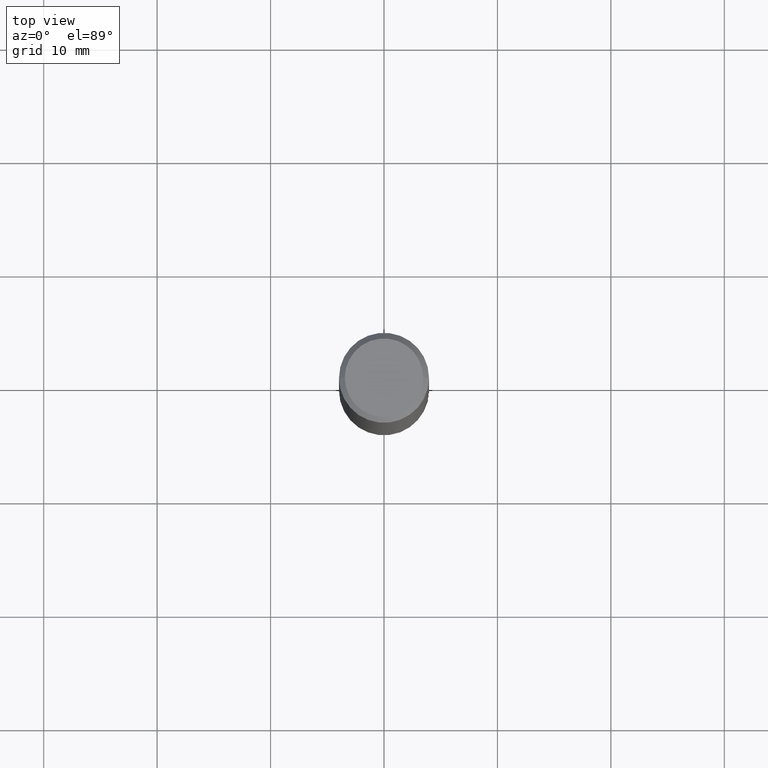
[diagram: clean part render]
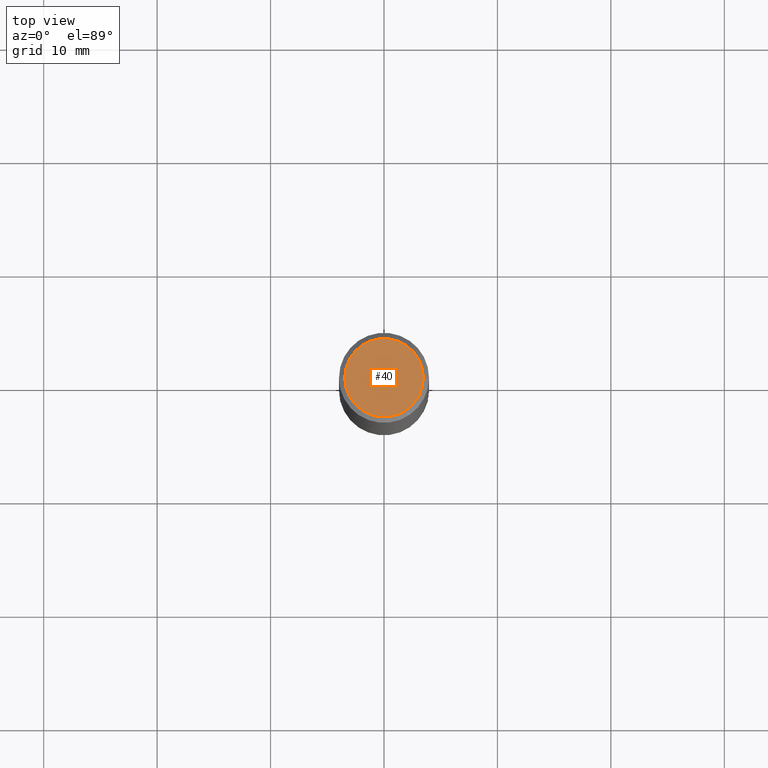
[diagram: same view with one face highlighted and labeled with its STEP entity id]
A machine part, top view. The second image highlights one B-rep face of the part: STEP entity #40.
In plain terms, the highlighted planar face has unit normal (0, -0, -1).
Its self-contained STEP definition (entity closure, byte-faithful):
#5 = FACE_OUTER_BOUND ( 'NONE', #273, .T. ) ;
#18 = AXIS2_PLACEMENT_3D ( 'NONE', #309, #100, #52 ) ;
#40 = ADVANCED_FACE ( 'NONE', ( #5 ), #239, .F. ) ;
#52 = DIRECTION ( 'NONE',  ( 1.000000000000000000, -6.982962677686266711E-15, 4.876176775795935232E-29 ) ) ;
#91 = CARTESIAN_POINT ( 'NONE',  ( 0.000000000000000000, 0.000000000000000000, 0.000000000000000000 ) ) ;
#100 = DIRECTION ( 'NONE',  ( -2.445468806185136597E-29, 3.491481338843145583E-15, 1.000000000000000000 ) ) ;
#101 = ORIENTED_EDGE ( 'NONE', *, *, #304, .T. ) ;
#128 = EDGE_CURVE ( 'NONE', #277, #247, #289, .T. ) ;
#154 = DIRECTION ( 'NONE',  ( -1.000000000000000000, 6.982962677686265922E-15, -4.876176775795935793E-29 ) ) ;
#161 = CARTESIAN_POINT ( 'NONE',  ( -0.1362499999999998435, 9.863434782231838318E-16, -6.775751096333131476E-30 ) ) ;
#214 = AXIS2_PLACEMENT_3D ( 'NONE', #348, #346, #154 ) ;
#218 = CARTESIAN_POINT ( 'NONE',  ( 0.1362499999999998435, -1.038262645562516941E-15, 6.957025900226688069E-30 ) ) ;
#239 = PLANE ( 'NONE',  #214 ) ;
#247 = VERTEX_POINT ( 'NONE', #218 ) ;
#257 = CIRCLE ( 'NONE', #18, 0.1362499999999998435 ) ;
#262 = AXIS2_PLACEMENT_3D ( 'NONE', #91, #265, #295 ) ;
#265 = DIRECTION ( 'NONE',  ( -2.445468806185136597E-29, 3.491481338843145583E-15, 1.000000000000000000 ) ) ;
#273 = EDGE_LOOP ( 'NONE', ( #347, #101 ) ) ;
#277 = VERTEX_POINT ( 'NONE', #161 ) ;
#289 = CIRCLE ( 'NONE', #262, 0.1362499999999998435 ) ;
#295 = DIRECTION ( 'NONE',  ( 1.000000000000000000, -6.982962677686266711E-15, 4.876176775795935232E-29 ) ) ;
#304 = EDGE_CURVE ( 'NONE', #247, #277, #257, .T. ) ;
#309 = CARTESIAN_POINT ( 'NONE',  ( 0.000000000000000000, 0.000000000000000000, 0.000000000000000000 ) ) ;
#346 = DIRECTION ( 'NONE',  ( 2.438088387897960049E-29, -3.491481338843145188E-15, -1.000000000000000000 ) ) ;
#347 = ORIENTED_EDGE ( 'NONE', *, *, #128, .T. ) ;
#348 = CARTESIAN_POINT ( 'NONE',  ( 9.514286648347525771E-16, 0.1362499999999998435, -4.757143324173780635E-16 ) ) ;